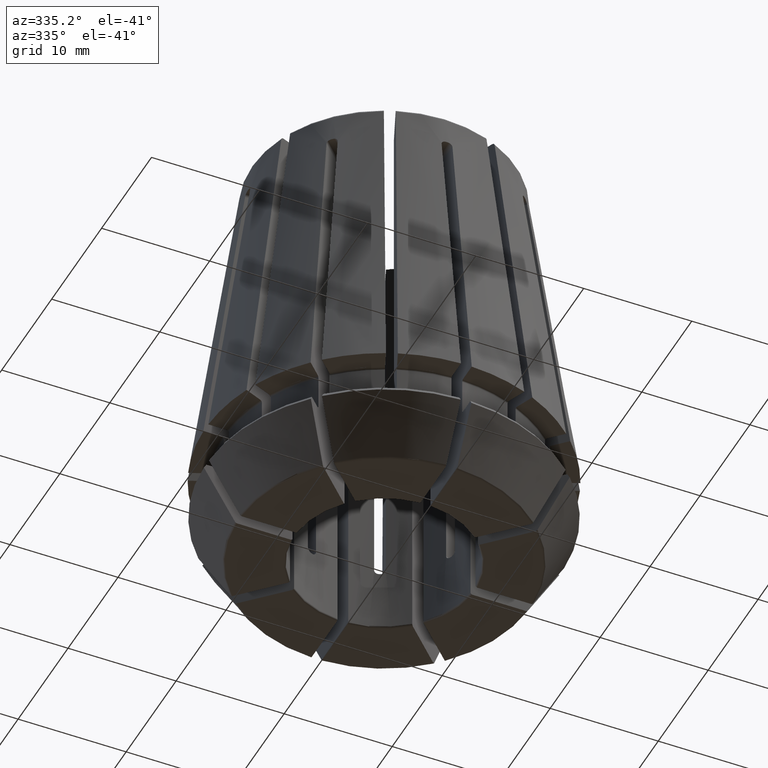
[diagram: clean part render]
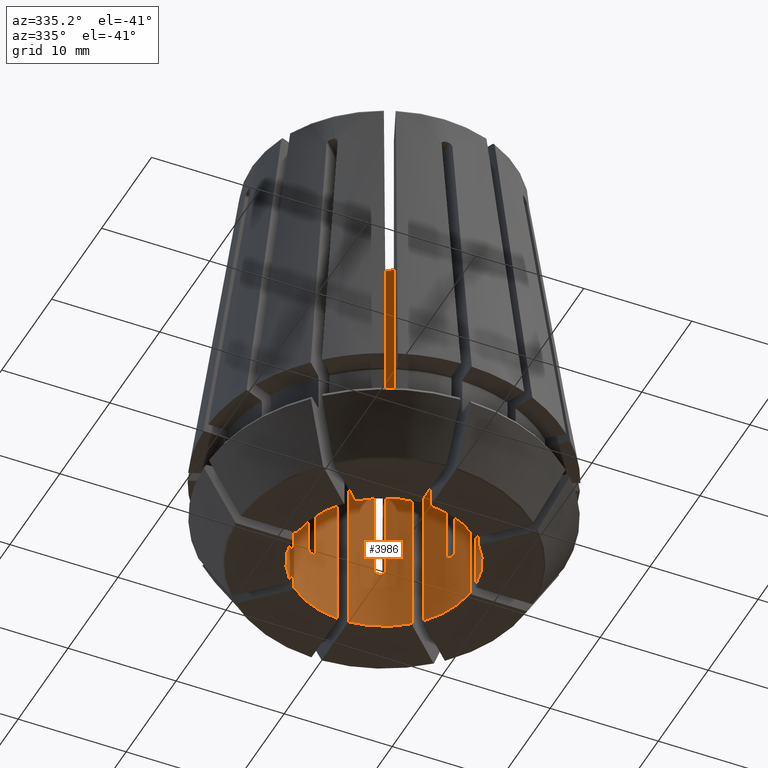
[diagram: same view with one face highlighted and labeled with its STEP entity id]
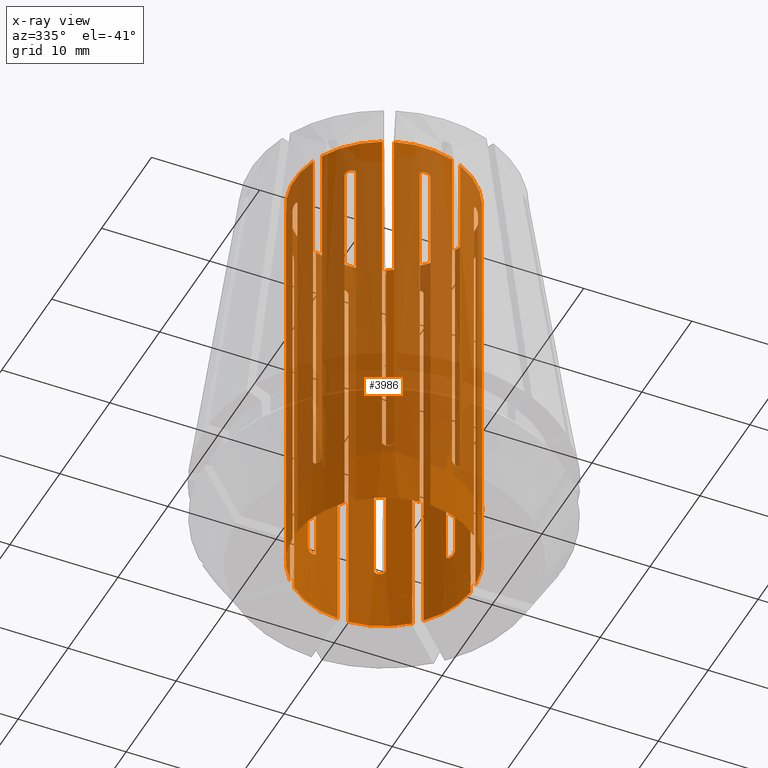
[diagram: x-ray of the same camera — body ghosted, the highlighted face saturated]
A machine part, auxiliary view. The second image highlights one B-rep face of the part: STEP entity #3986.
The next image is the same camera in x-ray: the body ghosted, the highlighted face saturated — about 65% of this face is hidden behind the body in this view.
In plain terms, the highlighted cylindrical surface (bore or boss wall) has radius 8.25 mm, axis along (0, 0, -1).
Its self-contained STEP definition (entity closure, byte-faithful):
#79=CYLINDRICAL_SURFACE('',#4400,8.25);
#190=LINE('',#6499,#414);
#196=LINE('',#6533,#420);
#199=LINE('',#6550,#423);
#205=LINE('',#6588,#429);
#209=LINE('',#6607,#433);
#214=LINE('',#6625,#438);
#219=LINE('',#6650,#443);
#224=LINE('',#6676,#448);
#229=LINE('',#6704,#453);
#234=LINE('',#6730,#458);
#237=LINE('',#6743,#461);
#243=LINE('',#6777,#467);
#247=LINE('',#6792,#471);
#251=LINE('',#6804,#475);
#257=LINE('',#6839,#481);
#261=LINE('',#6846,#485);
#279=LINE('',#7083,#503);
#281=LINE('',#7096,#505);
#282=LINE('',#7193,#506);
#294=LINE('',#7352,#518);
#295=LINE('',#7354,#519);
#296=LINE('',#7356,#520);
#297=LINE('',#7358,#521);
#298=LINE('',#7360,#522);
#299=LINE('',#7364,#523);
#301=LINE('',#7367,#525);
#302=LINE('',#7369,#526);
#303=LINE('',#7371,#527);
#304=LINE('',#7373,#528);
#305=LINE('',#7375,#529);
#306=LINE('',#7378,#530);
#307=LINE('',#7393,#531);
#414=VECTOR('',#5007,1000.);
#420=VECTOR('',#5021,1000.);
#423=VECTOR('',#5030,1000.);
#429=VECTOR('',#5044,1000.);
#433=VECTOR('',#5054,1000.);
#438=VECTOR('',#5065,1000.);
#443=VECTOR('',#5078,1000.);
#448=VECTOR('',#5091,1000.);
#453=VECTOR('',#5102,1000.);
#458=VECTOR('',#5115,1000.);
#461=VECTOR('',#5124,1000.);
#467=VECTOR('',#5138,1000.);
#471=VECTOR('',#5148,1000.);
#475=VECTOR('',#5160,1000.);
#481=VECTOR('',#5174,1000.);
#485=VECTOR('',#5180,1000.);
#503=VECTOR('',#5250,1000.);
#505=VECTOR('',#5260,1000.);
#506=VECTOR('',#5305,1000.);
#518=VECTOR('',#5377,1000.);
#519=VECTOR('',#5380,1000.);
#520=VECTOR('',#5383,1000.);
#521=VECTOR('',#5386,1000.);
#522=VECTOR('',#5389,1000.);
#523=VECTOR('',#5396,1000.);
#525=VECTOR('',#5400,1000.);
#526=VECTOR('',#5403,1000.);
#527=VECTOR('',#5406,1000.);
#528=VECTOR('',#5409,1000.);
#529=VECTOR('',#5412,1000.);
#530=VECTOR('',#5417,1000.);
#531=VECTOR('',#5420,1000.);
#624=CIRCLE('',#4012,8.25);
#642=CIRCLE('',#4042,8.25);
#649=CIRCLE('',#4052,8.25);
#669=CIRCLE('',#4085,8.25);
#690=CIRCLE('',#4119,8.25);
#709=CIRCLE('',#4150,8.25);
#726=CIRCLE('',#4177,8.25);
#743=CIRCLE('',#4204,8.25);
#770=CIRCLE('',#4248,8.25);
#771=CIRCLE('',#4250,8.25);
#774=CIRCLE('',#4255,8.25);
#775=CIRCLE('',#4258,8.25);
#776=CIRCLE('',#4261,8.25);
#778=CIRCLE('',#4265,8.25);
#779=CIRCLE('',#4268,8.25);
#781=CIRCLE('',#4272,8.25);
#782=CIRCLE('',#4275,8.25);
#784=CIRCLE('',#4279,8.25);
#785=CIRCLE('',#4282,8.25);
#787=CIRCLE('',#4286,8.25);
#788=CIRCLE('',#4289,8.25);
#790=CIRCLE('',#4293,8.25);
#791=CIRCLE('',#4296,8.25);
#794=CIRCLE('',#4301,8.25);
#795=CIRCLE('',#4331,8.25);
#799=CIRCLE('',#4339,8.25);
#802=CIRCLE('',#4345,8.25);
#804=CIRCLE('',#4350,8.25);
#805=CIRCLE('',#4354,8.25);
#806=CIRCLE('',#4357,8.25);
#807=CIRCLE('',#4361,8.25);
#812=CIRCLE('',#4391,8.25);
#1920=ORIENTED_EDGE('',*,*,#2520,.T.);
#1921=ORIENTED_EDGE('',*,*,#2581,.T.);
#1922=ORIENTED_EDGE('',*,*,#2524,.F.);
#1923=ORIENTED_EDGE('',*,*,#2670,.T.);
#1924=ORIENTED_EDGE('',*,*,#2419,.T.);
#1925=ORIENTED_EDGE('',*,*,#2568,.T.);
#1926=ORIENTED_EDGE('',*,*,#2413,.T.);
#1927=ORIENTED_EDGE('',*,*,#2571,.T.);
#1928=ORIENTED_EDGE('',*,*,#2667,.F.);
#1929=ORIENTED_EDGE('',*,*,#2628,.T.);
#1930=ORIENTED_EDGE('',*,*,#2431,.T.);
#1931=ORIENTED_EDGE('',*,*,#2559,.T.);
#1932=ORIENTED_EDGE('',*,*,#2602,.T.);
#1933=ORIENTED_EDGE('',*,*,#2562,.T.);
#1934=ORIENTED_EDGE('',*,*,#2665,.F.);
#1935=ORIENTED_EDGE('',*,*,#2625,.T.);
#1936=ORIENTED_EDGE('',*,*,#2448,.T.);
#1937=ORIENTED_EDGE('',*,*,#2550,.T.);
#1938=ORIENTED_EDGE('',*,*,#2442,.T.);
#1939=ORIENTED_EDGE('',*,*,#2553,.T.);
#1940=ORIENTED_EDGE('',*,*,#2675,.F.);
#1941=ORIENTED_EDGE('',*,*,#2619,.T.);
#1942=ORIENTED_EDGE('',*,*,#2462,.T.);
#1943=ORIENTED_EDGE('',*,*,#2679,.T.);
#1944=ORIENTED_EDGE('',*,*,#2458,.T.);
#1945=ORIENTED_EDGE('',*,*,#2548,.T.);
#1946=ORIENTED_EDGE('',*,*,#2673,.F.);
#1947=ORIENTED_EDGE('',*,*,#2613,.T.);
#1948=ORIENTED_EDGE('',*,*,#2678,.T.);
#1949=ORIENTED_EDGE('',*,*,#2544,.T.);
#1950=ORIENTED_EDGE('',*,*,#2476,.T.);
#1951=ORIENTED_EDGE('',*,*,#2594,.T.);
#1952=ORIENTED_EDGE('',*,*,#2480,.F.);
#1953=ORIENTED_EDGE('',*,*,#2639,.T.);
#1954=ORIENTED_EDGE('',*,*,#2497,.T.);
#1955=ORIENTED_EDGE('',*,*,#2661,.T.);
#1956=ORIENTED_EDGE('',*,*,#2491,.T.);
#1957=ORIENTED_EDGE('',*,*,#2592,.T.);
#1958=ORIENTED_EDGE('',*,*,#2604,.F.);
#1959=ORIENTED_EDGE('',*,*,#2633,.T.);
#1960=ORIENTED_EDGE('',*,*,#2512,.T.);
#1961=ORIENTED_EDGE('',*,*,#2586,.T.);
#1962=ORIENTED_EDGE('',*,*,#2506,.T.);
#1963=ORIENTED_EDGE('',*,*,#2589,.T.);
#1964=ORIENTED_EDGE('',*,*,#2669,.F.);
#1965=ORIENTED_EDGE('',*,*,#2111,.T.);
#1966=ORIENTED_EDGE('',*,*,#2677,.T.);
#1967=ORIENTED_EDGE('',*,*,#2578,.T.);
#1968=ORIENTED_EDGE('',*,*,#2534,.T.);
#1969=ORIENTED_EDGE('',*,*,#2546,.T.);
#1970=ORIENTED_EDGE('',*,*,#2536,.T.);
#1971=ORIENTED_EDGE('',*,*,#2129,.F.);
#1972=ORIENTED_EDGE('',*,*,#2518,.F.);
#1973=ORIENTED_EDGE('',*,*,#2680,.T.);
#1974=ORIENTED_EDGE('',*,*,#2515,.T.);
#1975=ORIENTED_EDGE('',*,*,#2681,.T.);
#1976=ORIENTED_EDGE('',*,*,#2682,.T.);
#1977=ORIENTED_EDGE('',*,*,#2177,.F.);
#1978=ORIENTED_EDGE('',*,*,#2668,.F.);
#1979=ORIENTED_EDGE('',*,*,#2555,.T.);
#1980=ORIENTED_EDGE('',*,*,#2500,.T.);
#1981=ORIENTED_EDGE('',*,*,#2554,.T.);
#1982=ORIENTED_EDGE('',*,*,#2502,.T.);
#1983=ORIENTED_EDGE('',*,*,#2226,.F.);
#1984=ORIENTED_EDGE('',*,*,#2488,.F.);
#1985=ORIENTED_EDGE('',*,*,#2566,.T.);
#1986=ORIENTED_EDGE('',*,*,#2485,.T.);
#1987=ORIENTED_EDGE('',*,*,#2565,.T.);
#1988=ORIENTED_EDGE('',*,*,#2630,.T.);
#1989=ORIENTED_EDGE('',*,*,#2271,.F.);
#1990=ORIENTED_EDGE('',*,*,#2471,.F.);
#1991=ORIENTED_EDGE('',*,*,#2576,.T.);
#1992=ORIENTED_EDGE('',*,*,#2467,.T.);
#1993=ORIENTED_EDGE('',*,*,#2574,.T.);
#1994=ORIENTED_EDGE('',*,*,#2671,.T.);
#1995=ORIENTED_EDGE('',*,*,#2310,.F.);
#1996=ORIENTED_EDGE('',*,*,#2455,.F.);
#1997=ORIENTED_EDGE('',*,*,#2584,.T.);
#1998=ORIENTED_EDGE('',*,*,#2452,.T.);
#1999=ORIENTED_EDGE('',*,*,#2583,.T.);
#2000=ORIENTED_EDGE('',*,*,#2674,.T.);
#2001=ORIENTED_EDGE('',*,*,#2349,.F.);
#2002=ORIENTED_EDGE('',*,*,#2676,.F.);
#2003=ORIENTED_EDGE('',*,*,#2663,.T.);
#2004=ORIENTED_EDGE('',*,*,#2435,.T.);
#2005=ORIENTED_EDGE('',*,*,#2662,.T.);
#2006=ORIENTED_EDGE('',*,*,#2437,.T.);
#2007=ORIENTED_EDGE('',*,*,#2412,.F.);
#2008=ORIENTED_EDGE('',*,*,#2599,.F.);
#2009=ORIENTED_EDGE('',*,*,#2597,.T.);
#2010=ORIENTED_EDGE('',*,*,#2427,.T.);
#2011=ORIENTED_EDGE('',*,*,#2596,.T.);
#2012=ORIENTED_EDGE('',*,*,#2666,.T.);
#2013=ORIENTED_EDGE('',*,*,#2067,.F.);
#2014=ORIENTED_EDGE('',*,*,#2540,.F.);
#2015=ORIENTED_EDGE('',*,*,#2683,.T.);
#2067=EDGE_CURVE('',#2691,#2692,#624,.T.);
#2111=EDGE_CURVE('',#2726,#2725,#642,.T.);
#2129=EDGE_CURVE('',#2742,#2740,#649,.T.);
#2177=EDGE_CURVE('',#2780,#2778,#669,.T.);
#2226=EDGE_CURVE('',#2820,#2818,#690,.T.);
#2271=EDGE_CURVE('',#2856,#2854,#709,.T.);
#2310=EDGE_CURVE('',#2888,#2886,#726,.T.);
#2349=EDGE_CURVE('',#2920,#2918,#743,.T.);
#2412=EDGE_CURVE('',#2972,#2970,#770,.T.);
#2413=EDGE_CURVE('',#2973,#2974,#771,.T.);
#2419=EDGE_CURVE('',#2980,#2979,#190,.T.);
#2427=EDGE_CURVE('',#2985,#2984,#774,.T.);
#2431=EDGE_CURVE('',#2988,#2987,#196,.T.);
#2435=EDGE_CURVE('',#2990,#2989,#775,.T.);
#2437=EDGE_CURVE('',#2991,#2970,#199,.T.);
#2442=EDGE_CURVE('',#2992,#2993,#776,.T.);
#2448=EDGE_CURVE('',#2998,#2997,#205,.T.);
#2452=EDGE_CURVE('',#3000,#2999,#778,.T.);
#2455=EDGE_CURVE('',#3001,#2888,#209,.T.);
#2458=EDGE_CURVE('',#3002,#3003,#779,.T.);
#2462=EDGE_CURVE('',#3005,#3004,#214,.T.);
#2467=EDGE_CURVE('',#3009,#3008,#781,.T.);
#2471=EDGE_CURVE('',#3012,#2856,#219,.T.);
#2476=EDGE_CURVE('',#3015,#3016,#782,.T.);
#2480=EDGE_CURVE('',#3019,#3020,#224,.T.);
#2485=EDGE_CURVE('',#3023,#3022,#784,.T.);
#2488=EDGE_CURVE('',#3024,#2820,#229,.T.);
#2491=EDGE_CURVE('',#3025,#3026,#785,.T.);
#2497=EDGE_CURVE('',#3031,#3030,#234,.T.);
#2500=EDGE_CURVE('',#3033,#3032,#787,.T.);
#2502=EDGE_CURVE('',#3034,#2818,#237,.T.);
#2506=EDGE_CURVE('',#3035,#3036,#788,.T.);
#2512=EDGE_CURVE('',#3041,#3040,#243,.T.);
#2515=EDGE_CURVE('',#3043,#3042,#790,.T.);
#2518=EDGE_CURVE('',#3044,#2742,#247,.T.);
#2520=EDGE_CURVE('',#3045,#3046,#791,.T.);
#2524=EDGE_CURVE('',#3049,#3050,#251,.T.);
#2534=EDGE_CURVE('',#3057,#3056,#794,.T.);
#2536=EDGE_CURVE('',#3058,#2740,#257,.T.);
#2540=EDGE_CURVE('',#3059,#2691,#261,.T.);
#2544=EDGE_CURVE('',#3061,#3015,#3232,.T.);
#2546=EDGE_CURVE('',#3056,#3058,#3233,.T.);
#2548=EDGE_CURVE('',#3003,#3062,#3234,.T.);
#2550=EDGE_CURVE('',#2997,#2992,#3236,.T.);
#2553=EDGE_CURVE('',#2993,#3064,#3238,.T.);
#2554=EDGE_CURVE('',#3032,#3034,#3239,.T.);
#2555=EDGE_CURVE('',#3065,#3033,#3240,.T.);
#2559=EDGE_CURVE('',#2987,#3067,#3242,.T.);
#2562=EDGE_CURVE('',#3071,#3070,#3244,.T.);
#2565=EDGE_CURVE('',#3022,#3072,#3245,.T.);
#2566=EDGE_CURVE('',#3024,#3023,#3246,.T.);
#2568=EDGE_CURVE('',#2979,#2973,#3248,.T.);
#2571=EDGE_CURVE('',#2974,#3074,#3250,.T.);
#2574=EDGE_CURVE('',#3008,#3076,#3252,.T.);
#2576=EDGE_CURVE('',#3012,#3009,#3254,.T.);
#2578=EDGE_CURVE('',#3078,#3045,#3256,.T.);
#2581=EDGE_CURVE('',#3046,#3050,#3258,.T.);
#2583=EDGE_CURVE('',#2999,#3079,#3259,.T.);
#2584=EDGE_CURVE('',#3001,#3000,#3260,.T.);
#2586=EDGE_CURVE('',#3040,#3035,#3262,.T.);
#2589=EDGE_CURVE('',#3036,#3081,#3264,.T.);
#2592=EDGE_CURVE('',#3026,#3083,#3266,.T.);
#2594=EDGE_CURVE('',#3016,#3020,#3268,.T.);
#2596=EDGE_CURVE('',#2984,#3084,#3269,.T.);
#2597=EDGE_CURVE('',#3085,#2985,#3270,.T.);
#2599=EDGE_CURVE('',#3085,#2972,#279,.T.);
#2602=EDGE_CURVE('',#3067,#3071,#795,.T.);
#2604=EDGE_CURVE('',#3086,#3083,#281,.T.);
#2613=EDGE_CURVE('',#3088,#3087,#799,.T.);
#2619=EDGE_CURVE('',#3091,#3005,#802,.T.);
#2625=EDGE_CURVE('',#3094,#2998,#804,.T.);
#2628=EDGE_CURVE('',#3095,#2988,#805,.T.);
#2630=EDGE_CURVE('',#3072,#2854,#282,.T.);
#2633=EDGE_CURVE('',#3086,#3041,#806,.T.);
#2639=EDGE_CURVE('',#3019,#3031,#807,.T.);
#2661=EDGE_CURVE('',#3030,#3025,#3302,.T.);
#2662=EDGE_CURVE('',#2989,#2991,#3303,.T.);
#2663=EDGE_CURVE('',#3099,#2990,#3304,.T.);
#2665=EDGE_CURVE('',#3094,#3070,#294,.T.);
#2666=EDGE_CURVE('',#3084,#2692,#295,.T.);
#2667=EDGE_CURVE('',#3095,#3074,#296,.T.);
#2668=EDGE_CURVE('',#3065,#2780,#297,.T.);
#2669=EDGE_CURVE('',#2726,#3081,#298,.T.);
#2670=EDGE_CURVE('',#3049,#2980,#812,.T.);
#2671=EDGE_CURVE('',#3076,#2886,#299,.T.);
#2673=EDGE_CURVE('',#3088,#3062,#301,.T.);
#2674=EDGE_CURVE('',#3079,#2918,#302,.T.);
#2675=EDGE_CURVE('',#3091,#3064,#303,.T.);
#2676=EDGE_CURVE('',#3099,#2920,#304,.T.);
#2677=EDGE_CURVE('',#2725,#3078,#305,.T.);
#2678=EDGE_CURVE('',#3087,#3061,#306,.T.);
#2679=EDGE_CURVE('',#3004,#3002,#3305,.T.);
#2680=EDGE_CURVE('',#3044,#3043,#3306,.T.);
#2681=EDGE_CURVE('',#3042,#3100,#3307,.T.);
#2682=EDGE_CURVE('',#3100,#2778,#307,.T.);
#2683=EDGE_CURVE('',#3059,#3057,#3308,.T.);
#2691=VERTEX_POINT('',#5460);
#2692=VERTEX_POINT('',#5462);
#2725=VERTEX_POINT('',#5586);
#2726=VERTEX_POINT('',#5588);
#2740=VERTEX_POINT('',#5656);
#2742=VERTEX_POINT('',#5663);
#2778=VERTEX_POINT('',#5797);
#2780=VERTEX_POINT('',#5804);
#2818=VERTEX_POINT('',#5941);
#2820=VERTEX_POINT('',#5948);
#2854=VERTEX_POINT('',#6070);
#2856=VERTEX_POINT('',#6077);
#2886=VERTEX_POINT('',#6181);
#2888=VERTEX_POINT('',#6188);
#2918=VERTEX_POINT('',#6292);
#2920=VERTEX_POINT('',#6299);
#2970=VERTEX_POINT('',#6466);
#2972=VERTEX_POINT('',#6473);
#2973=VERTEX_POINT('',#6477);
#2974=VERTEX_POINT('',#6478);
#2979=VERTEX_POINT('',#6498);
#2980=VERTEX_POINT('',#6500);
#2984=VERTEX_POINT('',#6521);
#2985=VERTEX_POINT('',#6523);
#2987=VERTEX_POINT('',#6532);
#2988=VERTEX_POINT('',#6534);
#2989=VERTEX_POINT('',#6545);
#2990=VERTEX_POINT('',#6547);
#2991=VERTEX_POINT('',#6551);
#2992=VERTEX_POINT('',#6567);
#2993=VERTEX_POINT('',#6568);
#2997=VERTEX_POINT('',#6587);
#2998=VERTEX_POINT('',#6589);
#2999=VERTEX_POINT('',#6600);
#3000=VERTEX_POINT('',#6602);
#3001=VERTEX_POINT('',#6606);
#3002=VERTEX_POINT('',#6618);
#3003=VERTEX_POINT('',#6619);
#3004=VERTEX_POINT('',#6624);
#3005=VERTEX_POINT('',#6626);
#3008=VERTEX_POINT('',#6640);
#3009=VERTEX_POINT('',#6642);
#3012=VERTEX_POINT('',#6649);
#3015=VERTEX_POINT('',#6668);
#3016=VERTEX_POINT('',#6669);
#3019=VERTEX_POINT('',#6677);
#3020=VERTEX_POINT('',#6678);
#3022=VERTEX_POINT('',#6697);
#3023=VERTEX_POINT('',#6699);
#3024=VERTEX_POINT('',#6703);
#3025=VERTEX_POINT('',#6715);
#3026=VERTEX_POINT('',#6716);
#3030=VERTEX_POINT('',#6729);
#3031=VERTEX_POINT('',#6731);
#3032=VERTEX_POINT('',#6738);
#3033=VERTEX_POINT('',#6740);
#3034=VERTEX_POINT('',#6744);
#3035=VERTEX_POINT('',#6756);
#3036=VERTEX_POINT('',#6757);
#3040=VERTEX_POINT('',#6776);
#3041=VERTEX_POINT('',#6778);
#3042=VERTEX_POINT('',#6785);
#3043=VERTEX_POINT('',#6787);
#3044=VERTEX_POINT('',#6791);
#3045=VERTEX_POINT('',#6796);
#3046=VERTEX_POINT('',#6797);
#3049=VERTEX_POINT('',#6805);
#3050=VERTEX_POINT('',#6806);
#3056=VERTEX_POINT('',#6834);
#3057=VERTEX_POINT('',#6836);
#3058=VERTEX_POINT('',#6840);
#3059=VERTEX_POINT('',#6845);
#3061=VERTEX_POINT('',#6865);
#3062=VERTEX_POINT('',#6874);
#3064=VERTEX_POINT('',#6895);
#3065=VERTEX_POINT('',#6910);
#3067=VERTEX_POINT('',#6919);
#3070=VERTEX_POINT('',#6932);
#3071=VERTEX_POINT('',#6937);
#3072=VERTEX_POINT('',#6941);
#3074=VERTEX_POINT('',#6967);
#3076=VERTEX_POINT('',#6979);
#3078=VERTEX_POINT('',#7003);
#3079=VERTEX_POINT('',#7016);
#3081=VERTEX_POINT('',#7042);
#3083=VERTEX_POINT('',#7054);
#3084=VERTEX_POINT('',#7070);
#3085=VERTEX_POINT('',#7080);
#3086=VERTEX_POINT('',#7097);
#3087=VERTEX_POINT('',#7127);
#3088=VERTEX_POINT('',#7129);
#3091=VERTEX_POINT('',#7150);
#3094=VERTEX_POINT('',#7174);
#3095=VERTEX_POINT('',#7187);
#3099=VERTEX_POINT('',#7349);
#3100=VERTEX_POINT('',#7392);
#3232=B_SPLINE_CURVE_WITH_KNOTS('',3,(#6861,#6862,#6863,#6864),
 .UNSPECIFIED.,.F.,.F.,(4,4),(0.,0.0006250557613205),.UNSPECIFIED.);
#3233=B_SPLINE_CURVE_WITH_KNOTS('',3,(#6868,#6869,#6870,#6871),
 .UNSPECIFIED.,.F.,.F.,(4,4),(7.05981306231723E-18,0.000625055487306392),
 .UNSPECIFIED.);
#3234=B_SPLINE_CURVE_WITH_KNOTS('',3,(#6875,#6876,#6877,#6878),
 .UNSPECIFIED.,.F.,.F.,(4,4),(3.6799042000401E-18,0.000625055487306413),
 .UNSPECIFIED.);
#3236=B_SPLINE_CURVE_WITH_KNOTS('',3,(#6884,#6885,#6886,#6887),
 .UNSPECIFIED.,.F.,.F.,(4,4),(0.,0.0006250557613205),.UNSPECIFIED.);
#3238=B_SPLINE_CURVE_WITH_KNOTS('',3,(#6896,#6897,#6898,#6899),
 .UNSPECIFIED.,.F.,.F.,(4,4),(1.89735380184963E-19,0.000625055487306404),
 .UNSPECIFIED.);
#3239=B_SPLINE_CURVE_WITH_KNOTS('',3,(#6901,#6902,#6903,#6904),
 .UNSPECIFIED.,.F.,.F.,(4,4),(2.87671344241808E-18,0.000625055487306401),
 .UNSPECIFIED.);
#3240=B_SPLINE_CURVE_WITH_KNOTS('',3,(#6906,#6907,#6908,#6909),
 .UNSPECIFIED.,.F.,.F.,(4,4),(8.67361737988404E-19,0.000625055761320506),
 .UNSPECIFIED.);
#3242=B_SPLINE_CURVE_WITH_KNOTS('',3,(#6920,#6921,#6922,#6923),
 .UNSPECIFIED.,.F.,.F.,(4,4),(0.,0.000625055761320499),.UNSPECIFIED.);
#3244=B_SPLINE_CURVE_WITH_KNOTS('',3,(#6933,#6934,#6935,#6936),
 .UNSPECIFIED.,.F.,.F.,(4,4),(3.6799042000401E-18,0.000625055487306413),
 .UNSPECIFIED.);
#3245=B_SPLINE_CURVE_WITH_KNOTS('',3,(#6942,#6943,#6944,#6945),
 .UNSPECIFIED.,.F.,.F.,(4,4),(8.67361737988404E-19,0.000625055487306406),
 .UNSPECIFIED.);
#3246=B_SPLINE_CURVE_WITH_KNOTS('',3,(#6947,#6948,#6949,#6950),
 .UNSPECIFIED.,.F.,.F.,(4,4),(8.67361737988404E-19,0.000625055761320496),
 .UNSPECIFIED.);
#3248=B_SPLINE_CURVE_WITH_KNOTS('',3,(#6956,#6957,#6958,#6959),
 .UNSPECIFIED.,.F.,.F.,(4,4),(0.,0.0006250557613205),.UNSPECIFIED.);
#3250=B_SPLINE_CURVE_WITH_KNOTS('',3,(#6968,#6969,#6970,#6971),
 .UNSPECIFIED.,.F.,.F.,(4,4),(2.71050543121376E-20,0.000625055487306404),
 .UNSPECIFIED.);
#3252=B_SPLINE_CURVE_WITH_KNOTS('',3,(#6980,#6981,#6982,#6983),
 .UNSPECIFIED.,.F.,.F.,(4,4),(7.05981306231723E-18,0.000625055487306393),
 .UNSPECIFIED.);
#3254=B_SPLINE_CURVE_WITH_KNOTS('',3,(#6989,#6990,#6991,#6992),
 .UNSPECIFIED.,.F.,.F.,(4,4),(0.,0.000625055761320505),.UNSPECIFIED.);
#3256=B_SPLINE_CURVE_WITH_KNOTS('',3,(#6999,#7000,#7001,#7002),
 .UNSPECIFIED.,.F.,.F.,(4,4),(0.,0.000625055761320504),.UNSPECIFIED.);
#3258=B_SPLINE_CURVE_WITH_KNOTS('',3,(#7010,#7011,#7012,#7013),
 .UNSPECIFIED.,.F.,.F.,(4,4),(1.2266347333467E-18,0.000625055487306406),
 .UNSPECIFIED.);
#3259=B_SPLINE_CURVE_WITH_KNOTS('',3,(#7017,#7018,#7019,#7020),
 .UNSPECIFIED.,.F.,.F.,(4,4),(4.35843879265135E-18,0.000625055487306415),
 .UNSPECIFIED.);
#3260=B_SPLINE_CURVE_WITH_KNOTS('',3,(#7022,#7023,#7024,#7025),
 .UNSPECIFIED.,.F.,.F.,(4,4),(0.,0.000625055761320497),.UNSPECIFIED.);
#3262=B_SPLINE_CURVE_WITH_KNOTS('',3,(#7031,#7032,#7033,#7034),
 .UNSPECIFIED.,.F.,.F.,(4,4),(0.,0.0006250557613205),.UNSPECIFIED.);
#3264=B_SPLINE_CURVE_WITH_KNOTS('',3,(#7043,#7044,#7045,#7046),
 .UNSPECIFIED.,.F.,.F.,(4,4),(4.20128341838133E-19,0.000625055487306405),
 .UNSPECIFIED.);
#3266=B_SPLINE_CURVE_WITH_KNOTS('',3,(#7055,#7056,#7057,#7058),
 .UNSPECIFIED.,.F.,.F.,(4,4),(1.2266347333467E-18,0.000625055487306406),
 .UNSPECIFIED.);
#3268=B_SPLINE_CURVE_WITH_KNOTS('',3,(#7064,#7065,#7066,#7067),
 .UNSPECIFIED.,.F.,.F.,(4,4),(2.84603070277445E-19,0.000625055487306405),
 .UNSPECIFIED.);
#3269=B_SPLINE_CURVE_WITH_KNOTS('',3,(#7071,#7072,#7073,#7074),
 .UNSPECIFIED.,.F.,.F.,(4,4),(4.35843879265135E-18,0.000625055487306415),
 .UNSPECIFIED.);
#3270=B_SPLINE_CURVE_WITH_KNOTS('',3,(#7076,#7077,#7078,#7079),
 .UNSPECIFIED.,.F.,.F.,(4,4),(0.,0.000625055761320499),.UNSPECIFIED.);
#3302=B_SPLINE_CURVE_WITH_KNOTS('',3,(#7335,#7336,#7337,#7338),
 .UNSPECIFIED.,.F.,.F.,(4,4),(0.,0.000625055761320499),.UNSPECIFIED.);
#3303=B_SPLINE_CURVE_WITH_KNOTS('',3,(#7340,#7341,#7342,#7343),
 .UNSPECIFIED.,.F.,.F.,(4,4),(7.05981306231723E-18,0.000625055487306392),
 .UNSPECIFIED.);
#3304=B_SPLINE_CURVE_WITH_KNOTS('',3,(#7345,#7346,#7347,#7348),
 .UNSPECIFIED.,.F.,.F.,(4,4),(0.,0.000625055761320502),.UNSPECIFIED.);
#3305=B_SPLINE_CURVE_WITH_KNOTS('',3,(#7380,#7381,#7382,#7383),
 .UNSPECIFIED.,.F.,.F.,(4,4),(1.40929601402592E-17,0.0006250557613205),
 .UNSPECIFIED.);
#3306=B_SPLINE_CURVE_WITH_KNOTS('',3,(#7384,#7385,#7386,#7387),
 .UNSPECIFIED.,.F.,.F.,(4,4),(8.67361737988404E-19,0.000625055761320494),
 .UNSPECIFIED.);
#3307=B_SPLINE_CURVE_WITH_KNOTS('',3,(#7388,#7389,#7390,#7391),
 .UNSPECIFIED.,.F.,.F.,(4,4),(5.14967499504103E-18,0.00062505548730641),
 .UNSPECIFIED.);
#3308=B_SPLINE_CURVE_WITH_KNOTS('',3,(#7394,#7395,#7396,#7397),
 .UNSPECIFIED.,.F.,.F.,(4,4),(8.67361737988404E-19,0.000625055761320508),
 .UNSPECIFIED.);
#3510=EDGE_LOOP('',(#1920,#1921,#1922,#1923,#1924,#1925,#1926,#1927,#1928,
#1929,#1930,#1931,#1932,#1933,#1934,#1935,#1936,#1937,#1938,#1939,#1940,
#1941,#1942,#1943,#1944,#1945,#1946,#1947,#1948,#1949,#1950,#1951,#1952,
#1953,#1954,#1955,#1956,#1957,#1958,#1959,#1960,#1961,#1962,#1963,#1964,
#1965,#1966,#1967));
#3511=EDGE_LOOP('',(#1968,#1969,#1970,#1971,#1972,#1973,#1974,#1975,#1976,
#1977,#1978,#1979,#1980,#1981,#1982,#1983,#1984,#1985,#1986,#1987,#1988,
#1989,#1990,#1991,#1992,#1993,#1994,#1995,#1996,#1997,#1998,#1999,#2000,
#2001,#2002,#2003,#2004,#2005,#2006,#2007,#2008,#2009,#2010,#2011,#2012,
#2013,#2014,#2015));
#3720=FACE_BOUND('',#3510,.T.);
#3721=FACE_BOUND('',#3511,.T.);
#3986=ADVANCED_FACE('',(#3720,#3721),#79,.F.);
#4012=AXIS2_PLACEMENT_3D('',#5461,#4420,#4421);
#4042=AXIS2_PLACEMENT_3D('',#5587,#4494,#4495);
#4052=AXIS2_PLACEMENT_3D('',#5664,#4514,#4515);
#4085=AXIS2_PLACEMENT_3D('',#5805,#4594,#4595);
#4119=AXIS2_PLACEMENT_3D('',#5949,#4676,#4677);
#4150=AXIS2_PLACEMENT_3D('',#6078,#4752,#4753);
#4177=AXIS2_PLACEMENT_3D('',#6189,#4818,#4819);
#4204=AXIS2_PLACEMENT_3D('',#6300,#4884,#4885);
#4248=AXIS2_PLACEMENT_3D('',#6474,#4994,#4995);
#4250=AXIS2_PLACEMENT_3D('',#6476,#4998,#4999);
#4255=AXIS2_PLACEMENT_3D('',#6522,#5015,#5016);
#4258=AXIS2_PLACEMENT_3D('',#6546,#5025,#5026);
#4261=AXIS2_PLACEMENT_3D('',#6566,#5035,#5036);
#4265=AXIS2_PLACEMENT_3D('',#6601,#5048,#5049);
#4268=AXIS2_PLACEMENT_3D('',#6617,#5058,#5059);
#4272=AXIS2_PLACEMENT_3D('',#6641,#5071,#5072);
#4275=AXIS2_PLACEMENT_3D('',#6667,#5083,#5084);
#4279=AXIS2_PLACEMENT_3D('',#6698,#5096,#5097);
#4282=AXIS2_PLACEMENT_3D('',#6714,#5106,#5107);
#4286=AXIS2_PLACEMENT_3D('',#6739,#5119,#5120);
#4289=AXIS2_PLACEMENT_3D('',#6755,#5129,#5130);
#4293=AXIS2_PLACEMENT_3D('',#6786,#5142,#5143);
#4296=AXIS2_PLACEMENT_3D('',#6795,#5152,#5153);
#4301=AXIS2_PLACEMENT_3D('',#6835,#5169,#5170);
#4331=AXIS2_PLACEMENT_3D('',#7093,#5254,#5255);
#4339=AXIS2_PLACEMENT_3D('',#7128,#5271,#5272);
#4345=AXIS2_PLACEMENT_3D('',#7149,#5283,#5284);
#4350=AXIS2_PLACEMENT_3D('',#7173,#5293,#5294);
#4354=AXIS2_PLACEMENT_3D('',#7186,#5301,#5302);
#4357=AXIS2_PLACEMENT_3D('',#7203,#5309,#5310);
#4361=AXIS2_PLACEMENT_3D('',#7233,#5319,#5320);
#4391=AXIS2_PLACEMENT_3D('',#7362,#5392,#5393);
#4400=AXIS2_PLACEMENT_3D('',#7379,#5418,#5419);
#4420=DIRECTION('',(0.,0.,-1.));
#4421=DIRECTION('',(-1.,0.,0.));
#4494=DIRECTION('',(0.,0.,-1.));
#4495=DIRECTION('',(-1.,0.,0.));
#4514=DIRECTION('',(0.,0.,-1.));
#4515=DIRECTION('',(-1.,0.,0.));
#4594=DIRECTION('',(0.,0.,-1.));
#4595=DIRECTION('',(-1.,0.,0.));
#4676=DIRECTION('',(0.,0.,-1.));
#4677=DIRECTION('',(-1.,0.,0.));
#4752=DIRECTION('',(0.,0.,-1.));
#4753=DIRECTION('',(-1.,0.,0.));
#4818=DIRECTION('',(0.,0.,-1.));
#4819=DIRECTION('',(-1.,0.,0.));
#4884=DIRECTION('',(0.,0.,-1.));
#4885=DIRECTION('',(-1.,0.,0.));
#4994=DIRECTION('',(0.,0.,-1.));
#4995=DIRECTION('',(-1.,0.,0.));
#4998=DIRECTION('',(0.,0.,-1.));
#4999=DIRECTION('',(-1.,0.,0.));
#5007=DIRECTION('',(0.,0.,1.));
#5015=DIRECTION('',(0.,0.,1.));
#5016=DIRECTION('',(1.,0.,0.));
#5021=DIRECTION('',(0.,0.,1.));
#5025=DIRECTION('',(0.,0.,1.));
#5026=DIRECTION('',(1.,0.,0.));
#5030=DIRECTION('',(0.,0.,1.));
#5035=DIRECTION('',(0.,0.,-1.));
#5036=DIRECTION('',(-1.,0.,0.));
#5044=DIRECTION('',(0.,0.,1.));
#5048=DIRECTION('',(0.,0.,1.));
#5049=DIRECTION('',(1.,0.,0.));
#5054=DIRECTION('',(0.,0.,1.));
#5058=DIRECTION('',(0.,0.,-1.));
#5059=DIRECTION('',(-1.,0.,0.));
#5065=DIRECTION('',(0.,0.,1.));
#5071=DIRECTION('',(0.,0.,1.));
#5072=DIRECTION('',(1.,0.,0.));
#5078=DIRECTION('',(0.,0.,1.));
#5083=DIRECTION('',(0.,0.,-1.));
#5084=DIRECTION('',(-1.,0.,0.));
#5091=DIRECTION('',(0.,0.,1.));
#5096=DIRECTION('',(0.,0.,1.));
#5097=DIRECTION('',(1.,0.,0.));
#5102=DIRECTION('',(0.,0.,1.));
#5106=DIRECTION('',(0.,0.,-1.));
#5107=DIRECTION('',(-1.,0.,0.));
#5115=DIRECTION('',(0.,0.,1.));
#5119=DIRECTION('',(0.,0.,1.));
#5120=DIRECTION('',(1.,0.,0.));
#5124=DIRECTION('',(0.,0.,1.));
#5129=DIRECTION('',(0.,0.,-1.));
#5130=DIRECTION('',(-1.,0.,0.));
#5138=DIRECTION('',(0.,0.,1.));
#5142=DIRECTION('',(0.,0.,1.));
#5143=DIRECTION('',(1.,0.,0.));
#5148=DIRECTION('',(0.,0.,1.));
#5152=DIRECTION('',(0.,0.,-1.));
#5153=DIRECTION('',(-1.,0.,0.));
#5160=DIRECTION('',(0.,0.,1.));
#5169=DIRECTION('',(0.,0.,1.));
#5170=DIRECTION('',(1.,0.,0.));
#5174=DIRECTION('',(0.,0.,1.));
#5180=DIRECTION('',(0.,0.,1.));
#5250=DIRECTION('',(0.,0.,1.));
#5254=DIRECTION('',(0.,0.,-1.));
#5255=DIRECTION('',(-1.,0.,0.));
#5260=DIRECTION('',(0.,0.,1.));
#5271=DIRECTION('',(0.,0.,-1.));
#5272=DIRECTION('',(-1.,0.,0.));
#5283=DIRECTION('',(0.,0.,-1.));
#5284=DIRECTION('',(-1.,0.,0.));
#5293=DIRECTION('',(0.,0.,-1.));
#5294=DIRECTION('',(-1.,0.,0.));
#5301=DIRECTION('',(0.,0.,-1.));
#5302=DIRECTION('',(-1.,0.,0.));
#5305=DIRECTION('',(0.,0.,1.));
#5309=DIRECTION('',(0.,0.,-1.));
#5310=DIRECTION('',(-1.,0.,0.));
#5319=DIRECTION('',(0.,0.,-1.));
#5320=DIRECTION('',(-1.,0.,0.));
#5377=DIRECTION('',(0.,0.,1.));
#5380=DIRECTION('',(0.,0.,1.));
#5383=DIRECTION('',(0.,0.,1.));
#5386=DIRECTION('',(0.,0.,1.));
#5389=DIRECTION('',(0.,0.,1.));
#5392=DIRECTION('',(0.,0.,-1.));
#5393=DIRECTION('',(-1.,0.,0.));
#5396=DIRECTION('',(0.,0.,1.));
#5400=DIRECTION('',(0.,0.,1.));
#5403=DIRECTION('',(0.,0.,1.));
#5406=DIRECTION('',(0.,0.,1.));
#5409=DIRECTION('',(0.,0.,1.));
#5412=DIRECTION('',(0.,0.,1.));
#5417=DIRECTION('',(0.,0.,1.));
#5418=DIRECTION('',(0.,0.,-1.));
#5419=DIRECTION('',(1.,0.,0.));
#5420=DIRECTION('',(0.,0.,1.));
#5460=CARTESIAN_POINT('',(2.6893949827662,-7.7993368068487,40.0000000000001));
#5461=CARTESIAN_POINT('',(0.,0.,40.));
#5462=CARTESIAN_POINT('',(-2.6893949827662,-7.7993368068487,40.0000000000001));
#5586=CARTESIAN_POINT('',(-6.17646074001903,5.46935395883248,0.399999999999909));
#5587=CARTESIAN_POINT('',(0.,0.,0.400000000000005));
#5588=CARTESIAN_POINT('',(-8.23483454599987,0.499999999999999,0.399999999999913));
#5656=CARTESIAN_POINT('',(3.61327451527749,-7.41665337448362,40.0000000000001));
#5663=CARTESIAN_POINT('',(7.41665337448362,-3.61327451527749,40.0000000000001));
#5664=CARTESIAN_POINT('',(0.,0.,40.));
#5797=CARTESIAN_POINT('',(7.79933680684871,-2.6893949827662,40.0000000000001));
#5804=CARTESIAN_POINT('',(7.7993368068487,2.68939498276621,40.0000000000001));
#5805=CARTESIAN_POINT('',(0.,0.,40.));
#5941=CARTESIAN_POINT('',(7.41665337448361,3.61327451527749,40.0000000000001));
#5948=CARTESIAN_POINT('',(3.61327451527749,7.41665337448362,40.0000000000001));
#5949=CARTESIAN_POINT('',(0.,0.,40.));
#6070=CARTESIAN_POINT('',(2.6893949827662,7.79933680684871,40.0000000000001));
#6077=CARTESIAN_POINT('',(-2.68939498276621,7.7993368068487,40.0000000000001));
#6078=CARTESIAN_POINT('',(0.,0.,40.));
#6181=CARTESIAN_POINT('',(-3.61327451527749,7.41665337448361,40.0000000000001));
#6188=CARTESIAN_POINT('',(-7.41665337448362,3.61327451527749,40.0000000000001));
#6189=CARTESIAN_POINT('',(0.,0.,40.));
#6292=CARTESIAN_POINT('',(-7.79933680684871,2.6893949827662,40.0000000000001));
#6299=CARTESIAN_POINT('',(-7.7993368068487,-2.6893949827662,40.0000000000001));
#6300=CARTESIAN_POINT('',(0.,0.,40.));
#6466=CARTESIAN_POINT('',(-7.41665337448361,-3.61327451527749,40.0000000000001));
#6473=CARTESIAN_POINT('',(-3.61327451527749,-7.41665337448361,40.0000000000001));
#6474=CARTESIAN_POINT('',(0.,0.,40.));
#6476=CARTESIAN_POINT('',(0.,0.,37.2));
#6477=CARTESIAN_POINT('',(-0.1,8.24939391713112,37.2));
#6478=CARTESIAN_POINT('',(0.1,8.24939391713112,37.2));
#6498=CARTESIAN_POINT('',(-0.5,8.23483454600031,36.8));
#6499=CARTESIAN_POINT('',(-0.5,8.23483454600031,-57.));
#6500=CARTESIAN_POINT('',(-0.5,8.23483454599987,0.399999999999909));
#6521=CARTESIAN_POINT('',(-3.0645184258883,-7.65971453889707,6.2));
#6522=CARTESIAN_POINT('',(0.,0.,6.2));
#6523=CARTESIAN_POINT('',(-3.24929433239056,-7.58317785242405,6.2));
#6532=CARTESIAN_POINT('',(5.46935395883279,6.17646074001934,36.8));
#6533=CARTESIAN_POINT('',(5.46935395883279,6.17646074001934,-57.));
#6534=CARTESIAN_POINT('',(5.46935395883248,6.17646074001903,0.399999999999909));
#6545=CARTESIAN_POINT('',(-7.58317785242405,-3.24929433239056,6.2));
#6546=CARTESIAN_POINT('',(0.,0.,6.2));
#6547=CARTESIAN_POINT('',(-7.65971453889706,-3.06451842588831,6.2));
#6550=CARTESIAN_POINT('',(-7.41665337448402,-3.61327451527766,-57.));
#6551=CARTESIAN_POINT('',(-7.41665337448401,-3.61327451527766,6.6));
#6566=CARTESIAN_POINT('',(0.,0.,37.2));
#6567=CARTESIAN_POINT('',(8.24939391713112,0.0999999999999969,37.2));
#6568=CARTESIAN_POINT('',(8.24939391713112,-0.100000000000003,37.2));
#6587=CARTESIAN_POINT('',(8.23483454600031,0.499999999999999,36.8));
#6588=CARTESIAN_POINT('',(8.23483454600031,0.5,-57.));
#6589=CARTESIAN_POINT('',(8.23483454599987,0.499999999999999,0.399999999999909));
#6600=CARTESIAN_POINT('',(-7.65971453889707,3.0645184258883,6.2));
#6601=CARTESIAN_POINT('',(0.,0.,6.2));
#6602=CARTESIAN_POINT('',(-7.58317785242405,3.24929433239056,6.2));
#6606=CARTESIAN_POINT('',(-7.41665337448401,3.61327451527765,6.6));
#6607=CARTESIAN_POINT('',(-7.41665337448402,3.61327451527765,-57.));
#6617=CARTESIAN_POINT('',(0.,0.,37.2));
#6618=CARTESIAN_POINT('',(5.90391305760113,-5.76249170136382,37.2));
#6619=CARTESIAN_POINT('',(5.76249170136382,-5.90391305760113,37.2));
#6624=CARTESIAN_POINT('',(6.17646074001934,-5.46935395883279,36.8));
#6625=CARTESIAN_POINT('',(6.17646074001934,-5.46935395883279,-57.));
#6626=CARTESIAN_POINT('',(6.17646074001903,-5.46935395883248,0.399999999999909));
#6640=CARTESIAN_POINT('',(-3.24929433239056,7.58317785242405,6.2));
#6641=CARTESIAN_POINT('',(0.,0.,6.2));
#6642=CARTESIAN_POINT('',(-3.06451842588831,7.65971453889706,6.2));
#6649=CARTESIAN_POINT('',(-2.68939498276637,7.7993368068491,6.6));
#6650=CARTESIAN_POINT('',(-2.68939498276637,7.7993368068491,-57.));
#6667=CARTESIAN_POINT('',(0.,0.,37.2));
#6668=CARTESIAN_POINT('',(0.0999999999999975,-8.24939391713112,37.2));
#6669=CARTESIAN_POINT('',(-0.100000000000002,-8.24939391713112,37.2));
#6676=CARTESIAN_POINT('',(-0.5,-8.23483454600031,-57.));
#6677=CARTESIAN_POINT('',(-0.499999999999999,-8.23483454599987,0.400000000000043));
#6678=CARTESIAN_POINT('',(-0.5,-8.23483454600031,36.8));
#6697=CARTESIAN_POINT('',(3.0645184258883,7.65971453889707,6.2));
#6698=CARTESIAN_POINT('',(0.,0.,6.2));
#6699=CARTESIAN_POINT('',(3.24929433239056,7.58317785242405,6.2));
#6703=CARTESIAN_POINT('',(3.61327451527765,7.41665337448401,6.6));
#6704=CARTESIAN_POINT('',(3.61327451527765,7.41665337448402,-57.));
#6714=CARTESIAN_POINT('',(0.,0.,37.2));
#6715=CARTESIAN_POINT('',(-5.76249170136382,-5.90391305760113,37.2));
#6716=CARTESIAN_POINT('',(-5.90391305760113,-5.76249170136382,37.2));
#6729=CARTESIAN_POINT('',(-5.46935395883279,-6.17646074001934,36.8));
#6730=CARTESIAN_POINT('',(-5.46935395883279,-6.17646074001934,-57.));
#6731=CARTESIAN_POINT('',(-5.46935395883248,-6.17646074001903,0.399999999999909));
#6738=CARTESIAN_POINT('',(7.58317785242404,3.24929433239056,6.2));
#6739=CARTESIAN_POINT('',(0.,0.,6.2));
#6740=CARTESIAN_POINT('',(7.65971453889706,3.06451842588831,6.2));
#6743=CARTESIAN_POINT('',(7.41665337448401,3.61327451527766,-57.));
#6744=CARTESIAN_POINT('',(7.41665337448401,3.61327451527766,6.6));
#6755=CARTESIAN_POINT('',(0.,0.,37.2));
#6756=CARTESIAN_POINT('',(-8.24939391713112,-0.0999999999999995,37.2));
#6757=CARTESIAN_POINT('',(-8.24939391713112,0.1,37.2));
#6776=CARTESIAN_POINT('',(-8.23483454600031,-0.5,36.8));
#6777=CARTESIAN_POINT('',(-8.23483454600031,-0.5,-57.));
#6778=CARTESIAN_POINT('',(-8.23483454599987,-0.500000000000001,0.399999999999909));
#6785=CARTESIAN_POINT('',(7.65971453889707,-3.0645184258883,6.2));
#6786=CARTESIAN_POINT('',(0.,0.,6.2));
#6787=CARTESIAN_POINT('',(7.58317785242405,-3.24929433239056,6.2));
#6791=CARTESIAN_POINT('',(7.41665337448402,-3.61327451527765,6.6));
#6792=CARTESIAN_POINT('',(7.41665337448402,-3.61327451527765,-57.));
#6795=CARTESIAN_POINT('',(0.,0.,37.2));
#6796=CARTESIAN_POINT('',(-5.90391305760113,5.76249170136382,37.2));
#6797=CARTESIAN_POINT('',(-5.76249170136382,5.90391305760113,37.2));
#6804=CARTESIAN_POINT('',(-5.46935395883279,6.17646074001934,-57.));
#6805=CARTESIAN_POINT('',(-5.46935395883248,6.17646074001903,0.399999999999909));
#6806=CARTESIAN_POINT('',(-5.46935395883279,6.17646074001933,36.8));
#6834=CARTESIAN_POINT('',(3.24929433239056,-7.58317785242405,6.2));
#6835=CARTESIAN_POINT('',(0.,0.,6.2));
#6836=CARTESIAN_POINT('',(3.06451842588831,-7.65971453889706,6.2));
#6839=CARTESIAN_POINT('',(3.61327451527766,-7.41665337448402,-57.));
#6840=CARTESIAN_POINT('',(3.61327451527766,-7.41665337448401,6.6));
#6845=CARTESIAN_POINT('',(2.68939498276637,-7.7993368068491,6.6));
#6846=CARTESIAN_POINT('',(2.68939498276637,-7.7993368068491,-57.));
#6861=CARTESIAN_POINT('',(0.499999999999998,-8.2348345460003,36.8));
#6862=CARTESIAN_POINT('',(0.499999999999998,-8.2348345460003,37.0113552544373));
#6863=CARTESIAN_POINT('',(0.31133725543444,-8.24683206522349,37.2));
#6864=CARTESIAN_POINT('',(0.0999999999999973,-8.24939391713112,37.2));
#6865=CARTESIAN_POINT('',(0.499999999999999,-8.23483454600031,36.8));
#6868=CARTESIAN_POINT('',(3.24929433239057,-7.58317785242404,6.2));
#6869=CARTESIAN_POINT('',(3.44356624731741,-7.49993483156932,6.20000000000001));
#6870=CARTESIAN_POINT('',(3.61327451527765,-7.41665337448401,6.38864377483923));
#6871=CARTESIAN_POINT('',(3.61327451527765,-7.41665337448401,6.6));
#6874=CARTESIAN_POINT('',(5.46935395883279,-6.17646074001934,36.8));
#6875=CARTESIAN_POINT('',(5.76249170136381,-5.90391305760113,37.2));
#6876=CARTESIAN_POINT('',(5.61124053495537,-6.0515411786027,37.2));
#6877=CARTESIAN_POINT('',(5.46935395883278,-6.17646074001934,37.0113562251608));
#6878=CARTESIAN_POINT('',(5.46935395883279,-6.17646074001933,36.8));
#6884=CARTESIAN_POINT('',(8.2348345460003,0.499999999999997,36.8));
#6885=CARTESIAN_POINT('',(8.2348345460003,0.499999999999997,37.0113552544373));
#6886=CARTESIAN_POINT('',(8.24683206522349,0.311337255434439,37.2));
#6887=CARTESIAN_POINT('',(8.24939391713112,0.0999999999999967,37.2));
#6895=CARTESIAN_POINT('',(8.23483454600031,-0.500000000000001,36.8));
#6896=CARTESIAN_POINT('',(8.24939391713112,-0.100000000000003,37.2));
#6897=CARTESIAN_POINT('',(8.24683203715537,-0.311339570883824,37.2));
#6898=CARTESIAN_POINT('',(8.2348345460003,-0.500000000000003,37.0113562251608));
#6899=CARTESIAN_POINT('',(8.2348345460003,-0.500000000000003,36.8));
#6901=CARTESIAN_POINT('',(7.58317785242404,3.24929433239057,6.2));
#6902=CARTESIAN_POINT('',(7.49993483156931,3.44356624731742,6.2));
#6903=CARTESIAN_POINT('',(7.41665337448401,3.61327451527766,6.38864377483922));
#6904=CARTESIAN_POINT('',(7.41665337448401,3.61327451527766,6.6));
#6906=CARTESIAN_POINT('',(7.7993368068491,2.68939498276637,6.6));
#6907=CARTESIAN_POINT('',(7.7993368068491,2.68939498276637,6.38864474556266));
#6908=CARTESIAN_POINT('',(7.73822296265055,2.86828788285409,6.2));
#6909=CARTESIAN_POINT('',(7.65971453889706,3.06451842588831,6.2));
#6910=CARTESIAN_POINT('',(7.7993368068491,2.68939498276638,6.6));
#6919=CARTESIAN_POINT('',(5.76249170136382,5.90391305760113,37.2));
#6920=CARTESIAN_POINT('',(5.46935395883278,6.17646074001933,36.8));
#6921=CARTESIAN_POINT('',(5.46935395883278,6.17646074001933,37.0113552544373));
#6922=CARTESIAN_POINT('',(5.61124219207249,6.05153956117989,37.2));
#6923=CARTESIAN_POINT('',(5.76249170136382,5.90391305760113,37.2));
#6932=CARTESIAN_POINT('',(6.17646074001934,5.46935395883279,36.8));
#6933=CARTESIAN_POINT('',(5.90391305760113,5.76249170136381,37.2));
#6934=CARTESIAN_POINT('',(6.0515411786027,5.61124053495537,37.2));
#6935=CARTESIAN_POINT('',(6.17646074001934,5.46935395883278,37.0113562251608));
#6936=CARTESIAN_POINT('',(6.17646074001933,5.46935395883279,36.8));
#6937=CARTESIAN_POINT('',(5.90391305760113,5.76249170136382,37.2));
#6941=CARTESIAN_POINT('',(2.68939498276637,7.79933680684911,6.6));
#6942=CARTESIAN_POINT('',(3.0645184258883,7.65971453889707,6.2));
#6943=CARTESIAN_POINT('',(2.86828573291659,7.73822382280311,6.2));
#6944=CARTESIAN_POINT('',(2.68939498276636,7.7993368068491,6.38864377483922));
#6945=CARTESIAN_POINT('',(2.68939498276636,7.7993368068491,6.6));
#6947=CARTESIAN_POINT('',(3.61327451527765,7.41665337448401,6.6));
#6948=CARTESIAN_POINT('',(3.61327451527765,7.41665337448401,6.38864474556267));
#6949=CARTESIAN_POINT('',(3.44356411886232,7.49993574358499,6.2));
#6950=CARTESIAN_POINT('',(3.24929433239056,7.58317785242405,6.2));
#6956=CARTESIAN_POINT('',(-0.5,8.2348345460003,36.8));
#6957=CARTESIAN_POINT('',(-0.5,8.2348345460003,37.0113552544373));
#6958=CARTESIAN_POINT('',(-0.311337255434443,8.24683206522349,37.2));
#6959=CARTESIAN_POINT('',(-0.0999999999999998,8.24939391713112,37.2));
#6967=CARTESIAN_POINT('',(0.5,8.23483454600031,36.8));
#6968=CARTESIAN_POINT('',(0.0999999999999999,8.24939391713112,37.2));
#6969=CARTESIAN_POINT('',(0.311339570883821,8.24683203715538,37.2));
#6970=CARTESIAN_POINT('',(0.5,8.2348345460003,37.0113562251608));
#6971=CARTESIAN_POINT('',(0.5,8.2348345460003,36.8));
#6979=CARTESIAN_POINT('',(-3.61327451527766,7.41665337448401,6.6));
#6980=CARTESIAN_POINT('',(-3.24929433239057,7.58317785242404,6.2));
#6981=CARTESIAN_POINT('',(-3.44356624731742,7.49993483156931,6.20000000000001));
#6982=CARTESIAN_POINT('',(-3.61327451527765,7.41665337448401,6.38864377483923));
#6983=CARTESIAN_POINT('',(-3.61327451527765,7.41665337448401,6.6));
#6989=CARTESIAN_POINT('',(-2.68939498276637,7.7993368068491,6.6));
#6990=CARTESIAN_POINT('',(-2.68939498276637,7.7993368068491,6.38864474556266));
#6991=CARTESIAN_POINT('',(-2.86828788285409,7.73822296265055,6.2));
#6992=CARTESIAN_POINT('',(-3.06451842588831,7.65971453889706,6.2));
#6999=CARTESIAN_POINT('',(-6.17646074001934,5.46935395883278,36.8));
#7000=CARTESIAN_POINT('',(-6.17646074001934,5.46935395883278,37.0113552544373));
#7001=CARTESIAN_POINT('',(-6.0515395611799,5.61124219207248,37.2));
#7002=CARTESIAN_POINT('',(-5.90391305760113,5.76249170136381,37.2));
#7003=CARTESIAN_POINT('',(-6.17646074001934,5.46935395883279,36.8));
#7010=CARTESIAN_POINT('',(-5.76249170136382,5.90391305760112,37.2));
#7011=CARTESIAN_POINT('',(-5.61124053495538,6.05154117860269,37.2));
#7012=CARTESIAN_POINT('',(-5.46935395883278,6.17646074001933,37.0113562251608));
#7013=CARTESIAN_POINT('',(-5.46935395883279,6.17646074001933,36.8));
#7016=CARTESIAN_POINT('',(-7.79933680684911,2.68939498276637,6.6));
#7017=CARTESIAN_POINT('',(-7.65971453889706,3.06451842588831,6.2));
#7018=CARTESIAN_POINT('',(-7.7382238228031,2.8682857329166,6.2));
#7019=CARTESIAN_POINT('',(-7.7993368068491,2.68939498276636,6.38864377483922));
#7020=CARTESIAN_POINT('',(-7.7993368068491,2.68939498276636,6.6));
#7022=CARTESIAN_POINT('',(-7.41665337448401,3.61327451527765,6.6));
#7023=CARTESIAN_POINT('',(-7.41665337448401,3.61327451527765,6.38864474556267));
#7024=CARTESIAN_POINT('',(-7.49993574358499,3.44356411886233,6.2));
#7025=CARTESIAN_POINT('',(-7.58317785242405,3.24929433239056,6.2));
#7031=CARTESIAN_POINT('',(-8.2348345460003,-0.5,36.8));
#7032=CARTESIAN_POINT('',(-8.2348345460003,-0.5,37.0113552544373));
#7033=CARTESIAN_POINT('',(-8.24683206522349,-0.311337255434443,37.2));
#7034=CARTESIAN_POINT('',(-8.24939391713113,-0.0999999999999999,37.2));
#7042=CARTESIAN_POINT('',(-8.23483454600031,0.499999999999999,36.8));
#7043=CARTESIAN_POINT('',(-8.24939391713112,0.0999999999999999,37.2));
#7044=CARTESIAN_POINT('',(-8.24683203715538,0.311339570883821,37.2));
#7045=CARTESIAN_POINT('',(-8.2348345460003,0.500000000000001,37.0113562251608));
#7046=CARTESIAN_POINT('',(-8.2348345460003,0.500000000000001,36.8));
#7054=CARTESIAN_POINT('',(-6.17646074001934,-5.46935395883279,36.8));
#7055=CARTESIAN_POINT('',(-5.90391305760112,-5.76249170136382,37.2));
#7056=CARTESIAN_POINT('',(-6.05154117860269,-5.61124053495538,37.2));
#7057=CARTESIAN_POINT('',(-6.17646074001933,-5.46935395883278,37.0113562251608));
#7058=CARTESIAN_POINT('',(-6.17646074001933,-5.46935395883279,36.8));
#7064=CARTESIAN_POINT('',(-0.100000000000002,-8.24939391713112,37.2));
#7065=CARTESIAN_POINT('',(-0.311339570883823,-8.24683203715537,37.2));
#7066=CARTESIAN_POINT('',(-0.500000000000003,-8.2348345460003,37.0113562251608));
#7067=CARTESIAN_POINT('',(-0.500000000000003,-8.2348345460003,36.8));
#7070=CARTESIAN_POINT('',(-2.68939498276637,-7.7993368068491,6.6));
#7071=CARTESIAN_POINT('',(-3.06451842588831,-7.65971453889706,6.2));
#7072=CARTESIAN_POINT('',(-2.8682857329166,-7.7382238228031,6.2));
#7073=CARTESIAN_POINT('',(-2.68939498276636,-7.7993368068491,6.38864377483922));
#7074=CARTESIAN_POINT('',(-2.68939498276636,-7.7993368068491,6.6));
#7076=CARTESIAN_POINT('',(-3.61327451527766,-7.41665337448401,6.6));
#7077=CARTESIAN_POINT('',(-3.61327451527766,-7.41665337448401,6.38864474556267));
#7078=CARTESIAN_POINT('',(-3.44356411886233,-7.49993574358498,6.2));
#7079=CARTESIAN_POINT('',(-3.24929433239057,-7.58317785242404,6.2));
#7080=CARTESIAN_POINT('',(-3.61327451527766,-7.41665337448401,6.6));
#7083=CARTESIAN_POINT('',(-3.61327451527766,-7.41665337448402,-57.));
#7093=CARTESIAN_POINT('',(0.,0.,37.2));
#7096=CARTESIAN_POINT('',(-6.17646074001934,-5.46935395883279,-57.));
#7097=CARTESIAN_POINT('',(-6.17646074001903,-5.46935395883248,0.399999999999909));
#7127=CARTESIAN_POINT('',(0.5,-8.23483454599987,0.399999999999909));
#7128=CARTESIAN_POINT('',(0.,0.,0.400000000000005));
#7129=CARTESIAN_POINT('',(5.46935395883248,-6.17646074001903,0.399999999999909));
#7149=CARTESIAN_POINT('',(0.,0.,0.400000000000005));
#7150=CARTESIAN_POINT('',(8.23483454599987,-0.500000000000001,0.399999999999909));
#7173=CARTESIAN_POINT('',(0.,0.,0.400000000000005));
#7174=CARTESIAN_POINT('',(6.17646074001903,5.46935395883248,0.399999999999909));
#7186=CARTESIAN_POINT('',(0.,0.,0.400000000000005));
#7187=CARTESIAN_POINT('',(0.5,8.23483454599987,0.399999999999909));
#7193=CARTESIAN_POINT('',(2.68939498276637,7.79933680684911,-57.));
#7203=CARTESIAN_POINT('',(0.,0.,0.400000000000005));
#7233=CARTESIAN_POINT('',(0.,0.,0.400000000000005));
#7335=CARTESIAN_POINT('',(-5.46935395883278,-6.17646074001933,36.8));
#7336=CARTESIAN_POINT('',(-5.46935395883278,-6.17646074001933,37.0113552544373));
#7337=CARTESIAN_POINT('',(-5.61124219207248,-6.0515395611799,37.2));
#7338=CARTESIAN_POINT('',(-5.76249170136381,-5.90391305760113,37.2));
#7340=CARTESIAN_POINT('',(-7.58317785242404,-3.24929433239057,6.2));
#7341=CARTESIAN_POINT('',(-7.49993483156932,-3.44356624731741,6.20000000000001));
#7342=CARTESIAN_POINT('',(-7.41665337448401,-3.61327451527765,6.38864377483923));
#7343=CARTESIAN_POINT('',(-7.41665337448401,-3.61327451527765,6.6));
#7345=CARTESIAN_POINT('',(-7.7993368068491,-2.68939498276637,6.6));
#7346=CARTESIAN_POINT('',(-7.7993368068491,-2.68939498276637,6.38864474556266));
#7347=CARTESIAN_POINT('',(-7.73822296265055,-2.86828788285409,6.2));
#7348=CARTESIAN_POINT('',(-7.65971453889706,-3.06451842588831,6.2));
#7349=CARTESIAN_POINT('',(-7.7993368068491,-2.68939498276637,6.6));
#7352=CARTESIAN_POINT('',(6.17646074001934,5.46935395883279,-57.));
#7354=CARTESIAN_POINT('',(-2.68939498276637,-7.7993368068491,-57.));
#7356=CARTESIAN_POINT('',(0.5,8.23483454600031,-57.));
#7358=CARTESIAN_POINT('',(7.7993368068491,2.68939498276638,-57.));
#7360=CARTESIAN_POINT('',(-8.23483454600031,0.5,-57.));
#7362=CARTESIAN_POINT('',(0.,0.,0.400000000000005));
#7364=CARTESIAN_POINT('',(-3.61327451527766,7.41665337448401,-57.));
#7367=CARTESIAN_POINT('',(5.46935395883279,-6.17646074001934,-57.));
#7369=CARTESIAN_POINT('',(-7.79933680684911,2.68939498276637,-57.));
#7371=CARTESIAN_POINT('',(8.23483454600031,-0.5,-57.));
#7373=CARTESIAN_POINT('',(-7.7993368068491,-2.68939498276637,-57.));
#7375=CARTESIAN_POINT('',(-6.17646074001934,5.46935395883279,-57.));
#7378=CARTESIAN_POINT('',(0.5,-8.23483454600031,-57.));
#7379=CARTESIAN_POINT('',(0.,0.,-57.));
#7380=CARTESIAN_POINT('',(6.17646074001933,-5.46935395883279,36.8));
#7381=CARTESIAN_POINT('',(6.17646074001933,-5.46935395883279,37.0113552544373));
#7382=CARTESIAN_POINT('',(6.05153956117988,-5.61124219207249,37.2));
#7383=CARTESIAN_POINT('',(5.90391305760113,-5.76249170136382,37.2));
#7384=CARTESIAN_POINT('',(7.41665337448401,-3.61327451527765,6.6));
#7385=CARTESIAN_POINT('',(7.41665337448401,-3.61327451527765,6.38864474556267));
#7386=CARTESIAN_POINT('',(7.49993574358499,-3.44356411886232,6.2));
#7387=CARTESIAN_POINT('',(7.58317785242405,-3.24929433239056,6.2));
#7388=CARTESIAN_POINT('',(7.65971453889706,-3.06451842588831,6.2));
#7389=CARTESIAN_POINT('',(7.7382238228031,-2.8682857329166,6.2));
#7390=CARTESIAN_POINT('',(7.7993368068491,-2.68939498276637,6.38864377483922));
#7391=CARTESIAN_POINT('',(7.7993368068491,-2.68939498276637,6.6));
#7392=CARTESIAN_POINT('',(7.7993368068491,-2.68939498276637,6.6));
#7393=CARTESIAN_POINT('',(7.79933680684911,-2.68939498276637,-57.));
#7394=CARTESIAN_POINT('',(2.68939498276637,-7.7993368068491,6.6));
#7395=CARTESIAN_POINT('',(2.68939498276637,-7.7993368068491,6.38864474556266));
#7396=CARTESIAN_POINT('',(2.86828788285409,-7.73822296265055,6.2));
#7397=CARTESIAN_POINT('',(3.06451842588831,-7.65971453889706,6.2));